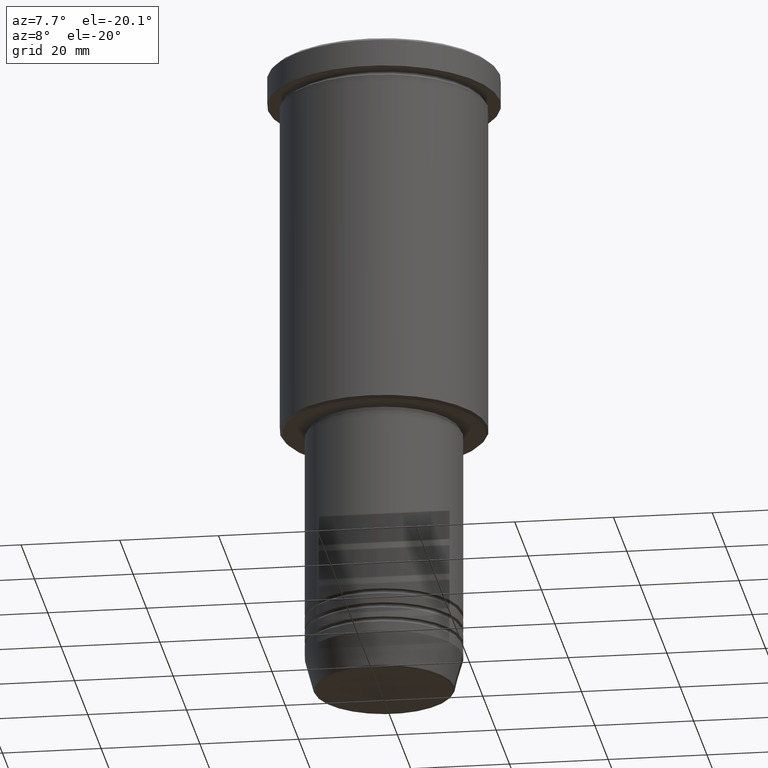
[diagram: clean part render]
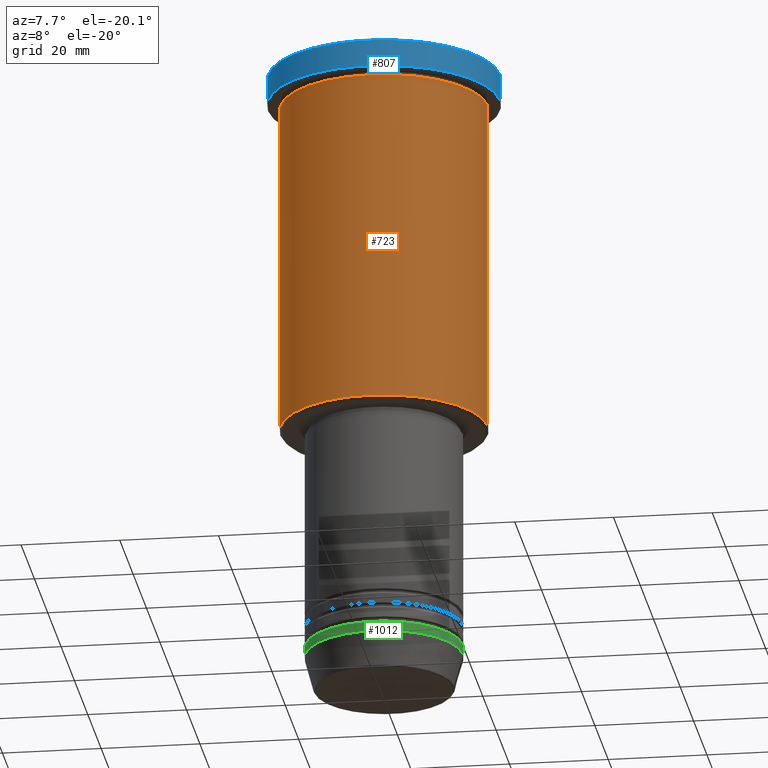
[diagram: same view with three faces highlighted in distinct colors, each labeled with its STEP entity id]
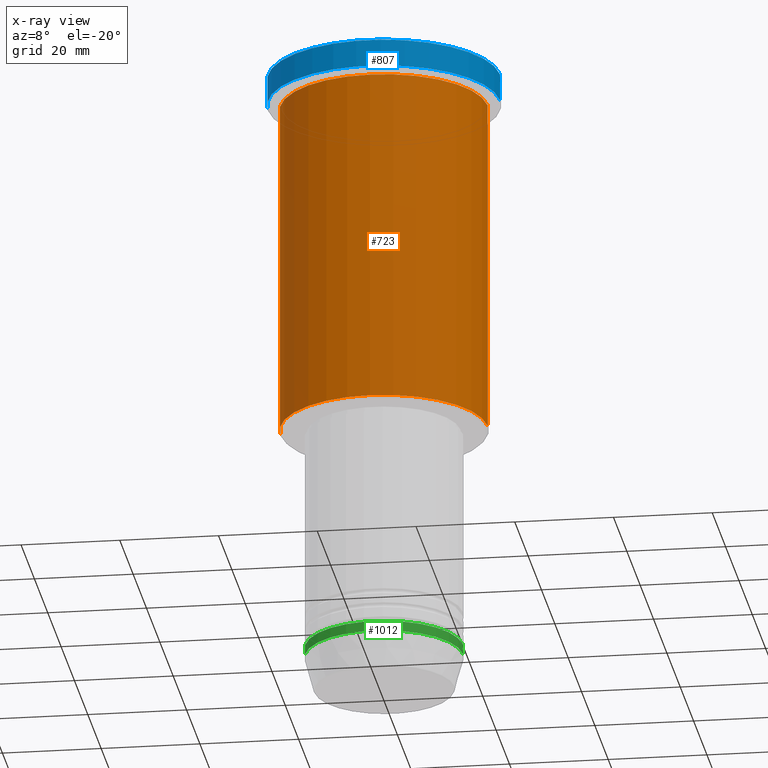
[diagram: x-ray of the same camera — body ghosted, the three highlighted faces saturated]
A machine part, auxiliary view with three faces highlighted in distinct colors.
The next image is the same camera in x-ray (body ghosted, the three faces saturated) — at least one of them is partly hidden behind the body in this view.
Their STEP definitions:

[orange] entity #723 — the highlighted cylindrical surface (partial cylindrical patch) has radius 21 mm, axis along (-0, -0, 1).
#45 = DIRECTION ( 'NONE',  ( -0.000000000000000000, -0.000000000000000000, 1.000000000000000000 ) ) ;
#67 = CARTESIAN_POINT ( 'NONE',  ( 21.00000000000000000, 0.000000000000000000, -75.49999999999997158 ) ) ;
#129 = EDGE_LOOP ( 'NONE', ( #935, #812, #799, #992 ) ) ;
#152 = AXIS2_PLACEMENT_3D ( 'NONE', #700, #626, #360 ) ;
#211 = VECTOR ( 'NONE', #45, 1000.000000000000000 ) ;
#254 = DIRECTION ( 'NONE',  ( -0.000000000000000000, -0.000000000000000000, 1.000000000000000000 ) ) ;
#256 = VERTEX_POINT ( 'NONE', #442 ) ;
#278 = LINE ( 'NONE', #930, #1075 ) ;
#317 = LINE ( 'NONE', #417, #211 ) ;
#322 = EDGE_CURVE ( 'NONE', #830, #479, #317, .T. ) ;
#326 = AXIS2_PLACEMENT_3D ( 'NONE', #1158, #254, #531 ) ;
#354 = CARTESIAN_POINT ( 'NONE',  ( 0.000000000000000000, 0.000000000000000000, -75.49999999999997158 ) ) ;
#360 = DIRECTION ( 'NONE',  ( 1.000000000000000000, 0.000000000000000000, 0.000000000000000000 ) ) ;
#417 = CARTESIAN_POINT ( 'NONE',  ( 21.00000000000000000, 0.000000000000000000, 0.000000000000000000 ) ) ;
#442 = CARTESIAN_POINT ( 'NONE',  ( -21.00000000000000000, 2.571758278209441661E-15, -6.999999999999994671 ) ) ;
#479 = VERTEX_POINT ( 'NONE', #899 ) ;
#510 = EDGE_CURVE ( 'NONE', #1127, #830, #943, .T. ) ;
#515 = AXIS2_PLACEMENT_3D ( 'NONE', #354, #999, #542 ) ;
#531 = DIRECTION ( 'NONE',  ( 1.000000000000000000, 0.000000000000000000, 0.000000000000000000 ) ) ;
#542 = DIRECTION ( 'NONE',  ( -1.000000000000000000, 0.000000000000000000, 0.000000000000000000 ) ) ;
#622 = CYLINDRICAL_SURFACE ( 'NONE', #326, 21.00000000000000000 ) ;
#626 = DIRECTION ( 'NONE',  ( -0.000000000000000000, -0.000000000000000000, 1.000000000000000000 ) ) ;
#630 = CIRCLE ( 'NONE', #152, 21.00000000000000000 ) ;
#636 = EDGE_CURVE ( 'NONE', #256, #479, #630, .T. ) ;
#700 = CARTESIAN_POINT ( 'NONE',  ( 0.000000000000000000, 0.000000000000000000, -6.999999999999994671 ) ) ;
#723 = ADVANCED_FACE ( 'NONE', ( #1142 ), #622, .T. ) ;
#733 = DIRECTION ( 'NONE',  ( -0.000000000000000000, -0.000000000000000000, 1.000000000000000000 ) ) ;
#799 = ORIENTED_EDGE ( 'NONE', *, *, #322, .T. ) ;
#812 = ORIENTED_EDGE ( 'NONE', *, *, #510, .T. ) ;
#830 = VERTEX_POINT ( 'NONE', #67 ) ;
#899 = CARTESIAN_POINT ( 'NONE',  ( 21.00000000000000000, 0.000000000000000000, -6.999999999999994671 ) ) ;
#930 = CARTESIAN_POINT ( 'NONE',  ( -21.00000000000000000, 2.571758278209441661E-15, 0.000000000000000000 ) ) ;
#935 = ORIENTED_EDGE ( 'NONE', *, *, #971, .F. ) ;
#943 = CIRCLE ( 'NONE', #515, 21.00000000000000000 ) ;
#971 = EDGE_CURVE ( 'NONE', #1127, #256, #278, .T. ) ;
#992 = ORIENTED_EDGE ( 'NONE', *, *, #636, .F. ) ;
#999 = DIRECTION ( 'NONE',  ( -0.000000000000000000, -0.000000000000000000, 1.000000000000000000 ) ) ;
#1031 = CARTESIAN_POINT ( 'NONE',  ( -21.00000000000000000, 2.571758278209441661E-15, -75.49999999999997158 ) ) ;
#1075 = VECTOR ( 'NONE', #733, 1000.000000000000000 ) ;
#1127 = VERTEX_POINT ( 'NONE', #1031 ) ;
#1142 = FACE_OUTER_BOUND ( 'NONE', #129, .T. ) ;
#1158 = CARTESIAN_POINT ( 'NONE',  ( 0.000000000000000000, 0.000000000000000000, 0.000000000000000000 ) ) ;

[blue] entity #807 — the highlighted cylindrical surface (partial cylindrical patch) has radius 23.5 mm, axis along (-0, -0, 1).
#72 = EDGE_CURVE ( 'NONE', #362, #725, #1049, .T. ) ;
#80 = CIRCLE ( 'NONE', #1153, 23.50000000000000000 ) ;
#160 = DIRECTION ( 'NONE',  ( -0.000000000000000000, -0.000000000000000000, 1.000000000000000000 ) ) ;
#167 = EDGE_CURVE ( 'NONE', #688, #213, #540, .T. ) ;
#213 = VERTEX_POINT ( 'NONE', #692 ) ;
#273 = DIRECTION ( 'NONE',  ( 1.000000000000000000, 0.000000000000000000, 0.000000000000000000 ) ) ;
#340 = VECTOR ( 'NONE', #1124, 1000.000000000000000 ) ;
#347 = DIRECTION ( 'NONE',  ( 1.000000000000000000, 0.000000000000000000, 0.000000000000000000 ) ) ;
#362 = VERTEX_POINT ( 'NONE', #749 ) ;
#433 = CARTESIAN_POINT ( 'NONE',  ( 0.000000000000000000, 0.000000000000000000, -0.5000000000000143219 ) ) ;
#450 = ORIENTED_EDGE ( 'NONE', *, *, #862, .T. ) ;
#452 = FACE_OUTER_BOUND ( 'NONE', #676, .T. ) ;
#457 = DIRECTION ( 'NONE',  ( -0.000000000000000000, -0.000000000000000000, 1.000000000000000000 ) ) ;
#463 = CIRCLE ( 'NONE', #760, 23.50000000000000000 ) ;
#520 = CARTESIAN_POINT ( 'NONE',  ( 23.50000000000000000, 0.000000000000000000, -0.5000000000000143219 ) ) ;
#525 = DIRECTION ( 'NONE',  ( -0.000000000000000000, -0.000000000000000000, 1.000000000000000000 ) ) ;
#535 = VECTOR ( 'NONE', #457, 1000.000000000000000 ) ;
#540 = LINE ( 'NONE', #563, #535 ) ;
#563 = CARTESIAN_POINT ( 'NONE',  ( -23.50000000000000000, 2.877919977996280320E-15, 0.000000000000000000 ) ) ;
#598 = ORIENTED_EDGE ( 'NONE', *, *, #659, .T. ) ;
#641 = CARTESIAN_POINT ( 'NONE',  ( 23.50000000000000000, 0.000000000000000000, 0.000000000000000000 ) ) ;
#659 = EDGE_CURVE ( 'NONE', #688, #362, #463, .T. ) ;
#676 = EDGE_LOOP ( 'NONE', ( #1066, #598, #1042, #450 ) ) ;
#688 = VERTEX_POINT ( 'NONE', #929 ) ;
#689 = CARTESIAN_POINT ( 'NONE',  ( 0.000000000000000000, 0.000000000000000000, 0.000000000000000000 ) ) ;
#692 = CARTESIAN_POINT ( 'NONE',  ( -23.50000000000000000, 2.877919977996280320E-15, -0.5000000000000143219 ) ) ;
#725 = VERTEX_POINT ( 'NONE', #520 ) ;
#749 = CARTESIAN_POINT ( 'NONE',  ( 23.50000000000000000, 0.000000000000000000, -5.999999999999994671 ) ) ;
#760 = AXIS2_PLACEMENT_3D ( 'NONE', #1074, #160, #1081 ) ;
#794 = DIRECTION ( 'NONE',  ( 0.000000000000000000, 0.000000000000000000, -1.000000000000000000 ) ) ;
#807 = ADVANCED_FACE ( 'NONE', ( #452 ), #810, .T. ) ;
#810 = CYLINDRICAL_SURFACE ( 'NONE', #920, 23.50000000000000000 ) ;
#862 = EDGE_CURVE ( 'NONE', #725, #213, #80, .T. ) ;
#920 = AXIS2_PLACEMENT_3D ( 'NONE', #689, #525, #273 ) ;
#929 = CARTESIAN_POINT ( 'NONE',  ( -23.50000000000000000, 2.877919977996280320E-15, -5.999999999999994671 ) ) ;
#1042 = ORIENTED_EDGE ( 'NONE', *, *, #72, .T. ) ;
#1049 = LINE ( 'NONE', #641, #340 ) ;
#1066 = ORIENTED_EDGE ( 'NONE', *, *, #167, .F. ) ;
#1074 = CARTESIAN_POINT ( 'NONE',  ( 0.000000000000000000, 0.000000000000000000, -5.999999999999994671 ) ) ;
#1081 = DIRECTION ( 'NONE',  ( 1.000000000000000000, 0.000000000000000000, 0.000000000000000000 ) ) ;
#1124 = DIRECTION ( 'NONE',  ( -0.000000000000000000, -0.000000000000000000, 1.000000000000000000 ) ) ;
#1153 = AXIS2_PLACEMENT_3D ( 'NONE', #433, #794, #347 ) ;

[green] entity #1012 — the highlighted cylindrical surface (partial cylindrical patch) has radius 16 mm, axis along (-0, -0, 1).
#13 = VERTEX_POINT ( 'NONE', #522 ) ;
#29 = FACE_OUTER_BOUND ( 'NONE', #592, .T. ) ;
#65 = LINE ( 'NONE', #524, #1073 ) ;
#101 = DIRECTION ( 'NONE',  ( 1.000000000000000000, 0.000000000000000000, 0.000000000000000000 ) ) ;
#113 = DIRECTION ( 'NONE',  ( 1.000000000000000000, 0.000000000000000000, 0.000000000000000000 ) ) ;
#146 = VERTEX_POINT ( 'NONE', #262 ) ;
#190 = EDGE_CURVE ( 'NONE', #1088, #378, #939, .T. ) ;
#200 = DIRECTION ( 'NONE',  ( -0.000000000000000000, -0.000000000000000000, 1.000000000000000000 ) ) ;
#224 = DIRECTION ( 'NONE',  ( 1.000000000000000000, 0.000000000000000000, 0.000000000000000000 ) ) ;
#262 = CARTESIAN_POINT ( 'NONE',  ( -16.00000000000000000, 1.959434878635765131E-15, -124.0000000000000000 ) ) ;
#282 = ORIENTED_EDGE ( 'NONE', *, *, #940, .T. ) ;
#290 = CARTESIAN_POINT ( 'NONE',  ( 0.000000000000000000, 0.000000000000000000, 0.000000000000000000 ) ) ;
#307 = CARTESIAN_POINT ( 'NONE',  ( -16.00000000000000000, 1.959434878635765131E-15, -122.0000000000000000 ) ) ;
#378 = VERTEX_POINT ( 'NONE', #915 ) ;
#453 = CARTESIAN_POINT ( 'NONE',  ( 0.000000000000000000, 0.000000000000000000, -122.0000000000000000 ) ) ;
#522 = CARTESIAN_POINT ( 'NONE',  ( 16.00000000000000000, 0.000000000000000000, -124.0000000000000000 ) ) ;
#524 = CARTESIAN_POINT ( 'NONE',  ( 16.00000000000000000, 0.000000000000000000, 0.000000000000000000 ) ) ;
#560 = ORIENTED_EDGE ( 'NONE', *, *, #949, .F. ) ;
#562 = DIRECTION ( 'NONE',  ( -0.000000000000000000, -0.000000000000000000, 1.000000000000000000 ) ) ;
#567 = CARTESIAN_POINT ( 'NONE',  ( 0.000000000000000000, 0.000000000000000000, -124.0000000000000000 ) ) ;
#569 = EDGE_CURVE ( 'NONE', #13, #378, #65, .T. ) ;
#592 = EDGE_LOOP ( 'NONE', ( #560, #282, #632, #1023 ) ) ;
#632 = ORIENTED_EDGE ( 'NONE', *, *, #569, .T. ) ;
#722 = CARTESIAN_POINT ( 'NONE',  ( -16.00000000000000000, 1.959434878635765131E-15, 0.000000000000000000 ) ) ;
#748 = LINE ( 'NONE', #722, #796 ) ;
#796 = VECTOR ( 'NONE', #562, 1000.000000000000000 ) ;
#811 = DIRECTION ( 'NONE',  ( -0.000000000000000000, -0.000000000000000000, 1.000000000000000000 ) ) ;
#888 = DIRECTION ( 'NONE',  ( -0.000000000000000000, -0.000000000000000000, 1.000000000000000000 ) ) ;
#898 = CIRCLE ( 'NONE', #1056, 16.00000000000000000 ) ;
#915 = CARTESIAN_POINT ( 'NONE',  ( 16.00000000000000000, 0.000000000000000000, -122.0000000000000000 ) ) ;
#936 = DIRECTION ( 'NONE',  ( -0.000000000000000000, -0.000000000000000000, 1.000000000000000000 ) ) ;
#939 = CIRCLE ( 'NONE', #1014, 16.00000000000000000 ) ;
#940 = EDGE_CURVE ( 'NONE', #146, #13, #898, .T. ) ;
#949 = EDGE_CURVE ( 'NONE', #146, #1088, #748, .T. ) ;
#1012 = ADVANCED_FACE ( 'NONE', ( #29 ), #1108, .T. ) ;
#1014 = AXIS2_PLACEMENT_3D ( 'NONE', #453, #811, #224 ) ;
#1023 = ORIENTED_EDGE ( 'NONE', *, *, #190, .F. ) ;
#1056 = AXIS2_PLACEMENT_3D ( 'NONE', #567, #936, #101 ) ;
#1073 = VECTOR ( 'NONE', #888, 1000.000000000000000 ) ;
#1088 = VERTEX_POINT ( 'NONE', #307 ) ;
#1093 = AXIS2_PLACEMENT_3D ( 'NONE', #290, #200, #113 ) ;
#1108 = CYLINDRICAL_SURFACE ( 'NONE', #1093, 16.00000000000000000 ) ;